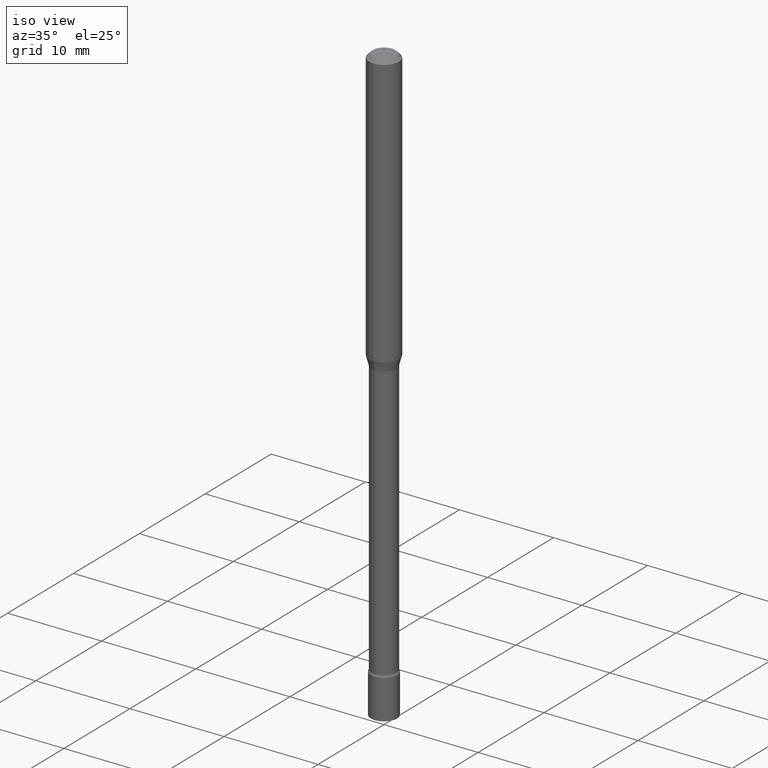
[diagram: clean part render]
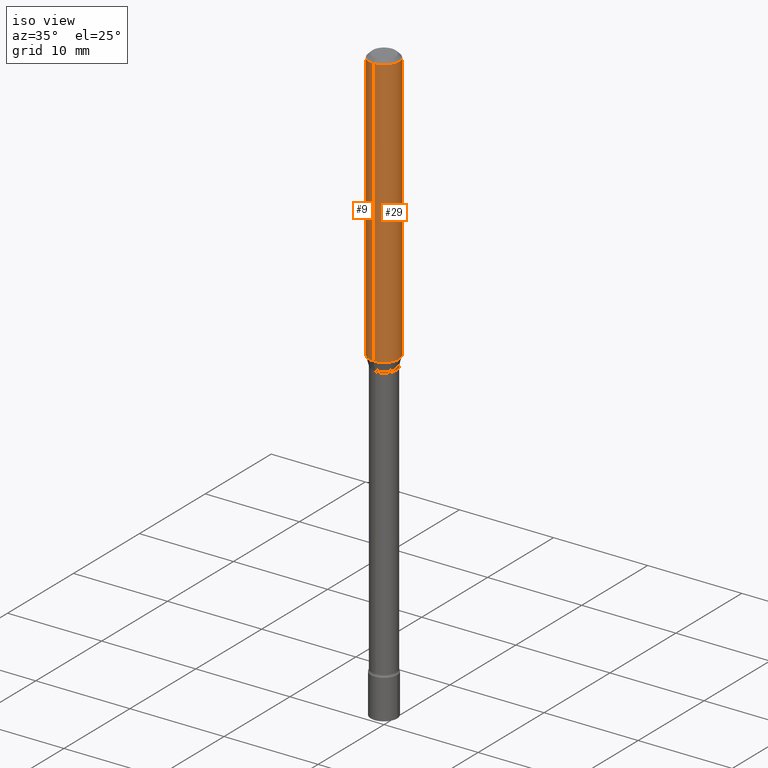
[diagram: same view with one multi-face feature highlighted, each face labeled with its STEP entity id]
A machine part, iso view. The highlighted faces form ONE feature: a constant-radius fillet chain: 2 tangent blend faces with common blend radius 1.5875 mm. The faces share edges in the B-rep.
Their STEP definitions:
[1] entity #9 (Cylinder):
#1 = CARTESIAN_POINT ( 'NONE',  ( -4.364351673553916201E-16, -0.06250000000000000000, 2.182278962925272521E-16 ) ) ;
#9 = ADVANCED_FACE ( 'NONE', ( #376 ), #454, .T. ) ;
#11 = DIRECTION ( 'NONE',  ( -2.445353586017981575E-29, 3.491646340680436033E-15, 1.000000000000000000 ) ) ;
#13 = AXIS2_PLACEMENT_3D ( 'NONE', #311, #11, #37 ) ;
#35 = AXIS2_PLACEMENT_3D ( 'NONE', #132, #170, #61 ) ;
#37 = DIRECTION ( 'NONE',  ( -6.982962677686265922E-15, -1.000000000000000000, 3.483106191921935554E-15 ) ) ;
#45 = VECTOR ( 'NONE', #211, 39.37007874015748143 ) ;
#49 = CARTESIAN_POINT ( 'NONE',  ( 4.440892098500906207E-16, 0.06249999999999993755, -0.01500000000000024751 ) ) ;
#61 = DIRECTION ( 'NONE',  ( -6.982962677686265922E-15, -1.000000000000000000, 4.370956789862821150E-15 ) ) ;
#67 = CARTESIAN_POINT ( 'NONE',  ( 4.440892098500903249E-16, 0.06249999999999600320, -1.139693851278256398 ) ) ;
#84 = CARTESIAN_POINT ( 'NONE',  ( -4.364351673553912750E-16, -0.06250000000000005551, -0.01499999999999981209 ) ) ;
#96 = DIRECTION ( 'NONE',  ( -6.982962677686265922E-15, -1.000000000000000000, 3.491646340680436033E-15 ) ) ;
#132 = CARTESIAN_POINT ( 'NONE',  ( 2.786954446185927741E-29, -3.979407865311716118E-15, -1.139693851278256176 ) ) ;
#137 = EDGE_CURVE ( 'NONE', #318, #473, #447, .T. ) ;
#143 = VECTOR ( 'NONE', #249, 39.37007874015748143 ) ;
#169 = DIRECTION ( 'NONE',  ( -2.445353586017981575E-29, 3.491646340680436033E-15, 1.000000000000000000 ) ) ;
#170 = DIRECTION ( 'NONE',  ( -2.445353586017981575E-29, 3.491646340680436033E-15, 1.000000000000000000 ) ) ;
#173 = CIRCLE ( 'NONE', #13, 0.06250000000000000000 ) ;
#175 = EDGE_LOOP ( 'NONE', ( #285, #493, #392, #177 ) ) ;
#177 = ORIENTED_EDGE ( 'NONE', *, *, #401, .F. ) ;
#190 = AXIS2_PLACEMENT_3D ( 'NONE', #408, #169, #96 ) ;
#211 = DIRECTION ( 'NONE',  ( -2.445353586017981575E-29, 3.491646340680436427E-15, 1.000000000000000000 ) ) ;
#212 = CARTESIAN_POINT ( 'NONE',  ( 4.440892098500625669E-16, 0.06250000000000000000, -2.182278962925272521E-16 ) ) ;
#226 = EDGE_CURVE ( 'NONE', #239, #316, #479, .T. ) ;
#239 = VERTEX_POINT ( 'NONE', #314 ) ;
#249 = DIRECTION ( 'NONE',  ( -2.445353586017981575E-29, 3.491646340680436427E-15, 1.000000000000000000 ) ) ;
#285 = ORIENTED_EDGE ( 'NONE', *, *, #137, .F. ) ;
#311 = CARTESIAN_POINT ( 'NONE',  ( 3.668030379026979334E-31, -5.237469511020664798E-17, -0.01500000000000003067 ) ) ;
#314 = CARTESIAN_POINT ( 'NONE',  ( -4.364351673553638128E-16, -0.06250000000000399680, -1.139693851278255732 ) ) ;
#316 = VERTEX_POINT ( 'NONE', #84 ) ;
#318 = VERTEX_POINT ( 'NONE', #67 ) ;
#376 = FACE_OUTER_BOUND ( 'NONE', #175, .T. ) ;
#383 = CIRCLE ( 'NONE', #35, 0.06250000000000000000 ) ;
#392 = ORIENTED_EDGE ( 'NONE', *, *, #226, .T. ) ;
#401 = EDGE_CURVE ( 'NONE', #473, #316, #173, .T. ) ;
#408 = CARTESIAN_POINT ( 'NONE',  ( 0.000000000000000000, 0.000000000000000000, 0.000000000000000000 ) ) ;
#447 = LINE ( 'NONE', #212, #143 ) ;
#454 = CYLINDRICAL_SURFACE ( 'NONE', #190, 0.06250000000000000000 ) ;
#473 = VERTEX_POINT ( 'NONE', #49 ) ;
#479 = LINE ( 'NONE', #1, #45 ) ;
#493 = ORIENTED_EDGE ( 'NONE', *, *, #519, .T. ) ;
#519 = EDGE_CURVE ( 'NONE', #318, #239, #383, .T. ) ;
[2] entity #29 (Cylinder):
#1 = CARTESIAN_POINT ( 'NONE',  ( -4.364351673553916201E-16, -0.06250000000000000000, 2.182278962925272521E-16 ) ) ;
#29 = ADVANCED_FACE ( 'NONE', ( #213 ), #412, .T. ) ;
#38 = DIRECTION ( 'NONE',  ( -2.445353586017981575E-29, 3.491646340680436033E-15, 1.000000000000000000 ) ) ;
#45 = VECTOR ( 'NONE', #211, 39.37007874015748143 ) ;
#49 = CARTESIAN_POINT ( 'NONE',  ( 4.440892098500906207E-16, 0.06249999999999993755, -0.01500000000000024751 ) ) ;
#60 = DIRECTION ( 'NONE',  ( -2.445353586017981575E-29, 3.491646340680436033E-15, 1.000000000000000000 ) ) ;
#67 = CARTESIAN_POINT ( 'NONE',  ( 4.440892098500903249E-16, 0.06249999999999600320, -1.139693851278256398 ) ) ;
#69 = ORIENTED_EDGE ( 'NONE', *, *, #137, .T. ) ;
#84 = CARTESIAN_POINT ( 'NONE',  ( -4.364351673553912750E-16, -0.06250000000000005551, -0.01499999999999981209 ) ) ;
#137 = EDGE_CURVE ( 'NONE', #318, #473, #447, .T. ) ;
#143 = VECTOR ( 'NONE', #249, 39.37007874015748143 ) ;
#191 = DIRECTION ( 'NONE',  ( -2.445353586017981575E-29, 3.491646340680436033E-15, 1.000000000000000000 ) ) ;
#195 = DIRECTION ( 'NONE',  ( -6.982962677686265922E-15, -1.000000000000000000, 4.370956789862821150E-15 ) ) ;
#211 = DIRECTION ( 'NONE',  ( -2.445353586017981575E-29, 3.491646340680436427E-15, 1.000000000000000000 ) ) ;
#212 = CARTESIAN_POINT ( 'NONE',  ( 4.440892098500625669E-16, 0.06250000000000000000, -2.182278962925272521E-16 ) ) ;
#213 = FACE_OUTER_BOUND ( 'NONE', #270, .T. ) ;
#216 = DIRECTION ( 'NONE',  ( -6.982962677686265922E-15, -1.000000000000000000, 3.491646340680436033E-15 ) ) ;
#218 = CIRCLE ( 'NONE', #514, 0.06250000000000000000 ) ;
#219 = AXIS2_PLACEMENT_3D ( 'NONE', #315, #191, #517 ) ;
#226 = EDGE_CURVE ( 'NONE', #239, #316, #479, .T. ) ;
#239 = VERTEX_POINT ( 'NONE', #314 ) ;
#249 = DIRECTION ( 'NONE',  ( -2.445353586017981575E-29, 3.491646340680436427E-15, 1.000000000000000000 ) ) ;
#270 = EDGE_LOOP ( 'NONE', ( #428, #69, #381, #322 ) ) ;
#273 = CARTESIAN_POINT ( 'NONE',  ( 2.786954446185927741E-29, -3.979407865311716118E-15, -1.139693851278256176 ) ) ;
#314 = CARTESIAN_POINT ( 'NONE',  ( -4.364351673553638128E-16, -0.06250000000000399680, -1.139693851278255732 ) ) ;
#315 = CARTESIAN_POINT ( 'NONE',  ( 3.668030379026979334E-31, -5.237469511020664798E-17, -0.01500000000000003067 ) ) ;
#316 = VERTEX_POINT ( 'NONE', #84 ) ;
#318 = VERTEX_POINT ( 'NONE', #67 ) ;
#322 = ORIENTED_EDGE ( 'NONE', *, *, #226, .F. ) ;
#372 = CARTESIAN_POINT ( 'NONE',  ( 0.000000000000000000, 0.000000000000000000, 0.000000000000000000 ) ) ;
#381 = ORIENTED_EDGE ( 'NONE', *, *, #425, .F. ) ;
#412 = CYLINDRICAL_SURFACE ( 'NONE', #507, 0.06250000000000000000 ) ;
#425 = EDGE_CURVE ( 'NONE', #316, #473, #468, .T. ) ;
#428 = ORIENTED_EDGE ( 'NONE', *, *, #442, .T. ) ;
#442 = EDGE_CURVE ( 'NONE', #239, #318, #218, .T. ) ;
#447 = LINE ( 'NONE', #212, #143 ) ;
#468 = CIRCLE ( 'NONE', #219, 0.06250000000000000000 ) ;
#473 = VERTEX_POINT ( 'NONE', #49 ) ;
#479 = LINE ( 'NONE', #1, #45 ) ;
#507 = AXIS2_PLACEMENT_3D ( 'NONE', #372, #60, #216 ) ;
#514 = AXIS2_PLACEMENT_3D ( 'NONE', #273, #38, #195 ) ;
#517 = DIRECTION ( 'NONE',  ( -6.982962677686265922E-15, -1.000000000000000000, 3.483106191921935554E-15 ) ) ;